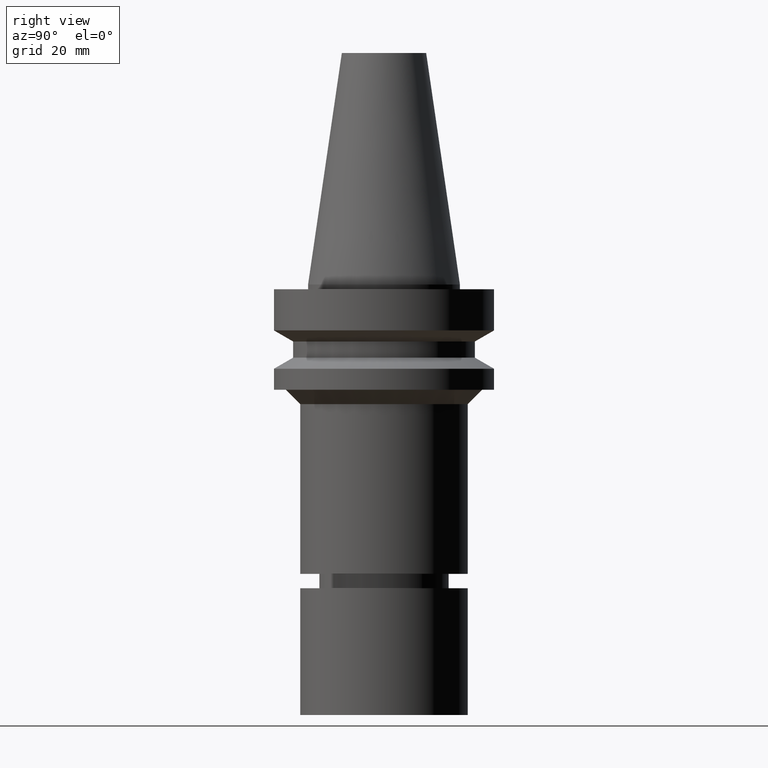
[diagram: clean part render]
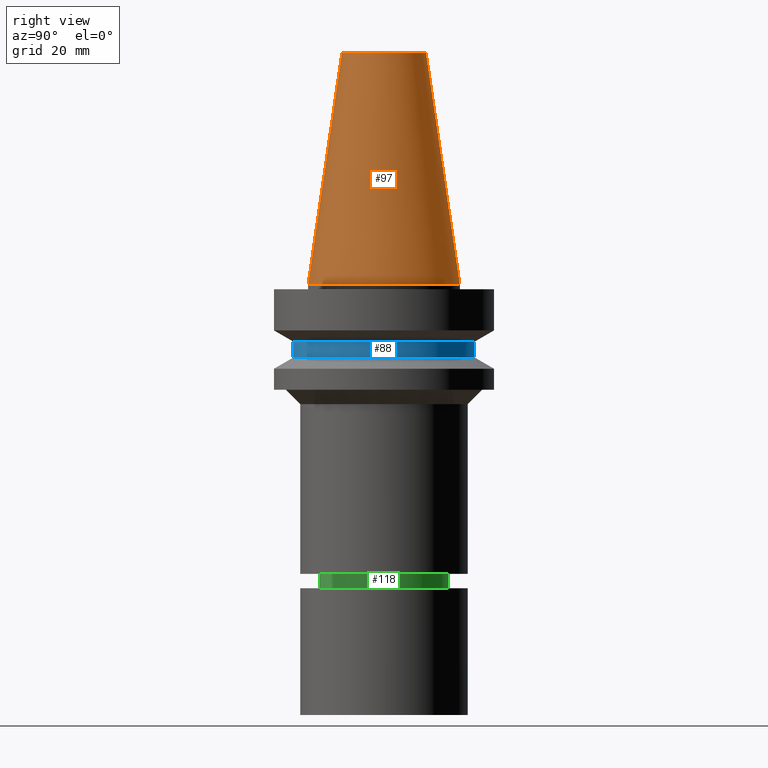
[diagram: same view with three faces highlighted in distinct colors, each labeled with its STEP entity id]
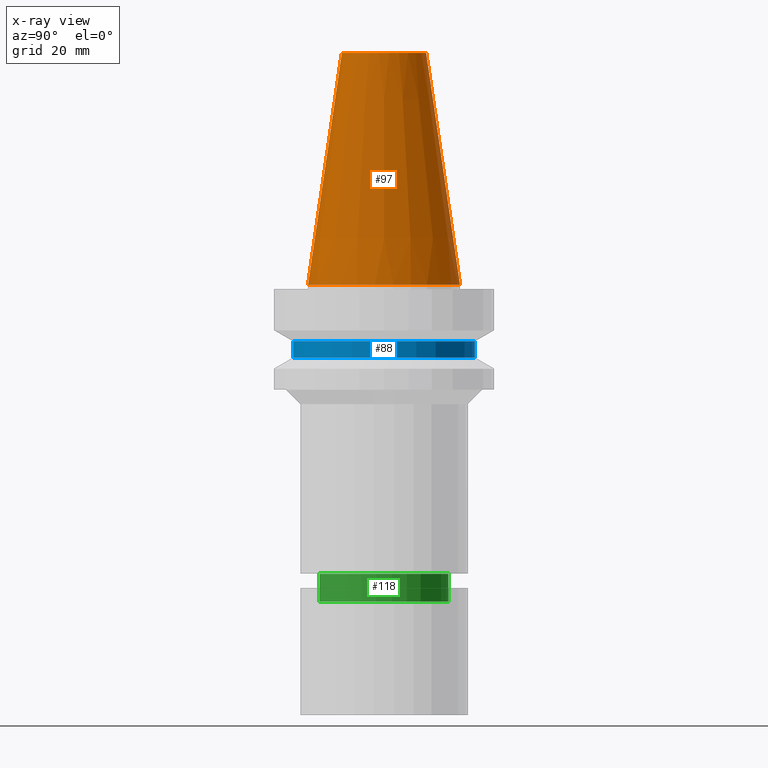
[diagram: x-ray of the same camera — body ghosted, the three highlighted faces saturated]
A machine part, right view with three faces highlighted in distinct colors.
The next image is the same camera in x-ray (body ghosted, the three faces saturated) — at least one of them is partly hidden behind the body in this view.
Their STEP definitions:

[orange] entity #97 — the highlighted conical surface has half-angle 8.297 deg.
#97=ADVANCED_FACE('Unnamed[1]',(#233,#234),#235,.T.);
#159=EDGE_CURVE('Unnamed[1]',#332,#332,#333,.T.);
#163=EDGE_CURVE('Unnamed[1]',#338,#338,#339,.T.);
#233=FACE_BOUND('',#417,.T.);
#234=FACE_BOUND('',#418,.T.);
#235=CONICAL_SURFACE('',#419,12.3457500009933,0.144815870013618);
#332=VERTEX_POINT('',#540);
#333=CIRCLE('',#541,8.81650000198669);
#338=VERTEX_POINT('',#548);
#339=CIRCLE('',#549,15.875);
#417=EDGE_LOOP('',(#612));
#418=EDGE_LOOP('',(#613));
#419=AXIS2_PLACEMENT_3D('',#614,#615,#616);
#540=CARTESIAN_POINT('',(-2.96364525393659E-015,8.81650000198669,48.4));
#541=AXIS2_PLACEMENT_3D('',#726,#727,#728);
#548=CARTESIAN_POINT('',(-1.95674482349743E-031,15.875,1.94412679364642E-015));
#549=AXIS2_PLACEMENT_3D('',#732,#733,#734);
#612=ORIENTED_EDGE('',*,*,#163,.F.);
#613=ORIENTED_EDGE('',*,*,#159,.T.);
#614=CARTESIAN_POINT('',(-1.4818226269683E-015,-2.96364525393659E-015,24.2));
#615=DIRECTION('',(6.12323399573677E-017,1.22464679914699E-016,-1.0));
#616=DIRECTION('',(-1.23259516440749E-032,1.0,1.22464679914699E-016));
#726=CARTESIAN_POINT('',(-2.96364525393659E-015,-5.92729050787319E-015,48.4));
#727=DIRECTION('',(6.12323399573677E-017,1.22464679914673E-016,-1.0));
#728=DIRECTION('',(-1.23259516440789E-032,1.0,1.22464679914673E-016));
#732=CARTESIAN_POINT('',(0.0,0.0,0.0));
#733=DIRECTION('',(6.12323399573677E-017,1.22464679914816E-016,-1.0));
#734=DIRECTION('',(-1.23259516440783E-032,1.0,1.22464679914816E-016));

[blue] entity #88 — the highlighted cylindrical surface (bore or boss wall) has radius 19 mm, axis along (0, 0, -1).
#88=ADVANCED_FACE('Unnamed[1]',(#219,#220),#221,.T.);
#130=EDGE_CURVE('Unnamed[1]',#286,#286,#287,.T.);
#136=EDGE_CURVE('Unnamed[1]',#295,#295,#296,.T.);
#219=FACE_BOUND('',#399,.T.);
#220=FACE_BOUND('',#400,.T.);
#221=CYLINDRICAL_SURFACE('',#401,19.0);
#286=VERTEX_POINT('',#482);
#287=CIRCLE('',#483,19.0);
#295=VERTEX_POINT('',#494);
#296=CIRCLE('',#495,19.0);
#399=EDGE_LOOP('',(#597));
#400=EDGE_LOOP('',(#598));
#401=AXIS2_PLACEMENT_3D('',#599,#600,#601);
#482=CARTESIAN_POINT('',(7.29240495619202E-016,19.0,-11.90940108));
#483=AXIS2_PLACEMENT_3D('',#675,#676,#677);
#494=CARTESIAN_POINT('',(9.36279151221199E-016,19.0,-15.29059892));
#495=AXIS2_PLACEMENT_3D('',#684,#685,#686);
#597=ORIENTED_EDGE('',*,*,#136,.F.);
#598=ORIENTED_EDGE('',*,*,#130,.T.);
#599=CARTESIAN_POINT('',(8.32759823420201E-016,1.6655196468404E-015,-13.6));
#600=DIRECTION('',(6.12323399573677E-017,1.22464679914665E-016,-1.0));
#601=DIRECTION('',(-1.23259516440783E-032,1.0,1.22464679914665E-016));
#675=CARTESIAN_POINT('',(7.29240495619202E-016,1.4584809912384E-015,-11.90940108));
#676=DIRECTION('',(6.12323399573677E-017,1.22464679914665E-016,-1.0));
#677=DIRECTION('',(-1.23259516440783E-032,1.0,1.22464679914665E-016));
#684=CARTESIAN_POINT('',(9.36279151221199E-016,1.8725583024424E-015,-15.29059892));
#685=DIRECTION('',(6.12323399573677E-017,1.22464679914665E-016,-1.0));
#686=DIRECTION('',(-1.23259516440783E-032,1.0,1.22464679914665E-016));

[green] entity #118 — the highlighted cylindrical surface (bore or boss wall) has radius 13.5 mm, axis along (0, 0, -1).
#75=EDGE_CURVE('Unnamed[1]',#201,#201,#202,.T.);
#118=ADVANCED_FACE('Unnamed[1]',(#267,#268),#269,.T.);
#132=EDGE_CURVE('Unnamed[1]',#289,#289,#290,.T.);
#201=VERTEX_POINT('',#377);
#202=CIRCLE('',#378,13.4999999999908);
#267=FACE_BOUND('',#458,.T.);
#268=FACE_BOUND('',#459,.T.);
#269=CYLINDRICAL_SURFACE('',#460,13.4999999999956);
#289=VERTEX_POINT('',#486);
#290=CIRCLE('',#487,13.5000000000005);
#377=CARTESIAN_POINT('',(3.70455656742072E-015,13.4999999999908,-60.4999999999996));
#378=AXIS2_PLACEMENT_3D('',#580,#581,#582);
#458=EDGE_LOOP('',(#653));
#459=EDGE_LOOP('',(#654));
#460=AXIS2_PLACEMENT_3D('',#655,#656,#657);
#486=CARTESIAN_POINT('',(4.06107114292147E-015,13.5000000000005,-66.3223248654052));
#487=AXIS2_PLACEMENT_3D('',#678,#679,#680);
#580=CARTESIAN_POINT('',(3.70455656742072E-015,7.40911313484144E-015,-60.4999999999996));
#581=DIRECTION('',(6.12323399573677E-017,1.22464679914717E-016,-1.0));
#582=DIRECTION('',(-1.23259516440734E-032,1.0,1.22464679914717E-016));
#653=ORIENTED_EDGE('',*,*,#132,.F.);
#654=ORIENTED_EDGE('',*,*,#75,.T.);
#655=CARTESIAN_POINT('',(3.88281385517109E-015,7.76562771034219E-015,-63.4111624327024));
#656=DIRECTION('',(6.12323399573677E-017,1.22464679914792E-016,-1.0));
#657=DIRECTION('',(-1.23259516440823E-032,1.0,1.22464679914792E-016));
#678=CARTESIAN_POINT('',(4.06107114292147E-015,8.12214228584294E-015,-66.3223248654052));
#679=DIRECTION('',(6.12323399573677E-017,1.22464679914749E-016,-1.0));
#680=DIRECTION('',(-1.23259516440779E-032,1.0,1.22464679914749E-016));